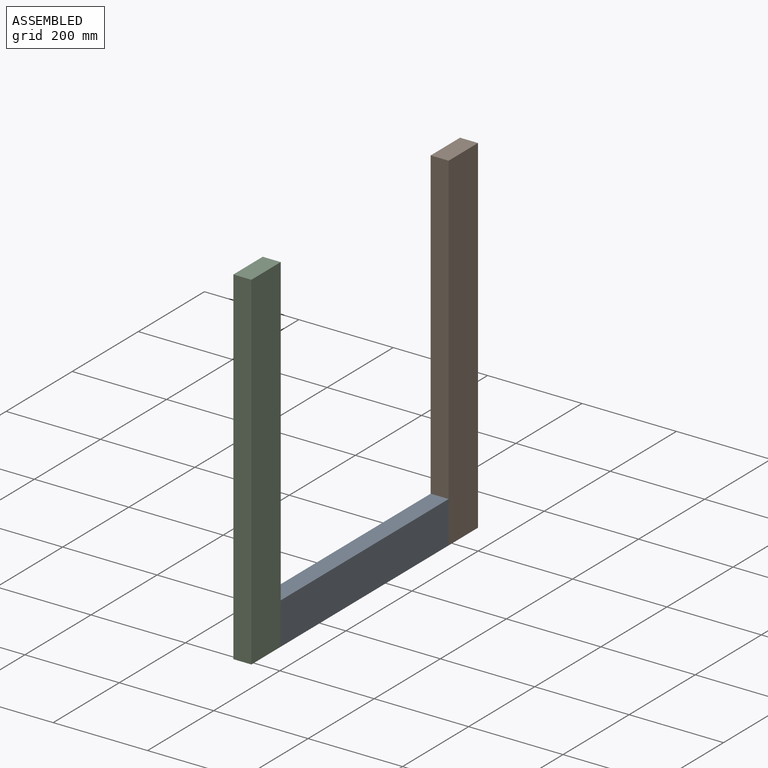
[diagram: assembled view]
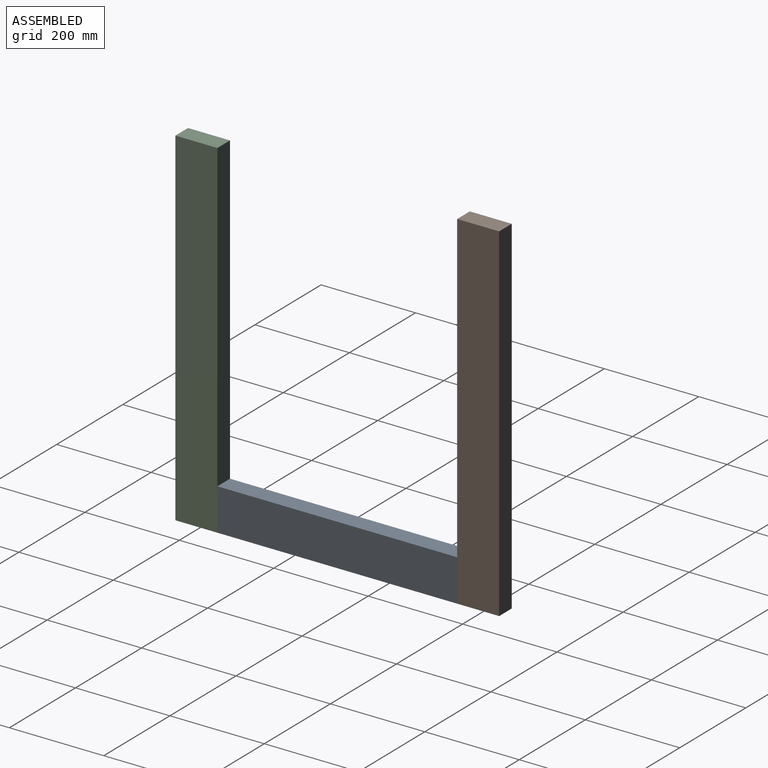
[diagram: assembled view, second angle]
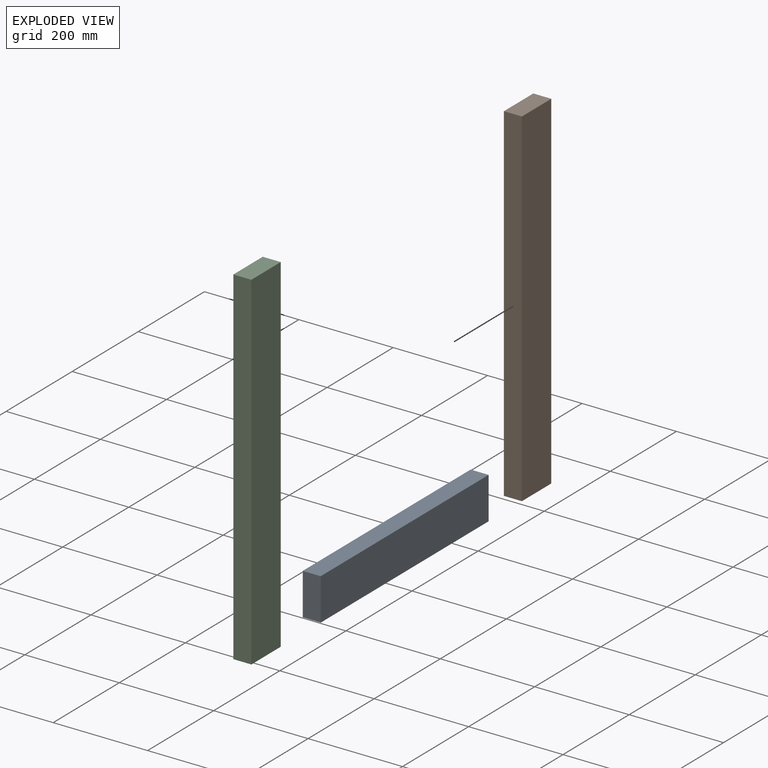
[diagram: exploded view]
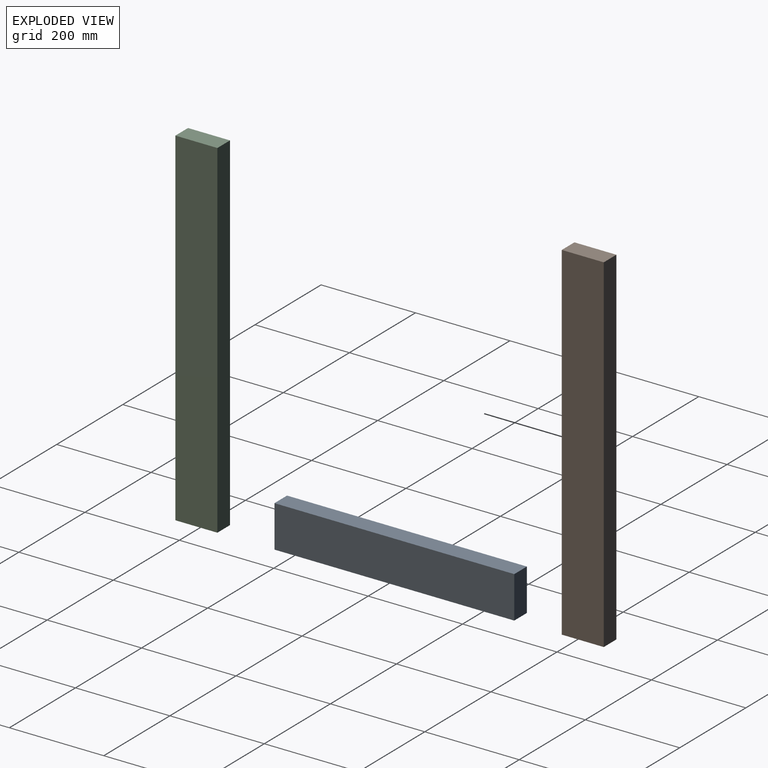
[diagram: exploded view, second angle]
ASSEMBLY  parts=3 mates=2
PART A: 6 faces, bbox 38.1x508x88.9 mm
  f0: plane 508x38.1mm, normal (0,0,-1), area 19354.8mm2, adj f1,f3,f4,f5
  f1: plane 508x88.9mm, normal (1,0,0), area 45161.2mm2, adj f0,f2,f4,f5
  f2: plane 508x38.1mm, normal (0,0,1), area 19354.8mm2, adj f1,f3,f4,f5
  f3: plane 508x88.9mm, normal (-1,0,0), area 45161.2mm2, adj f0,f2,f4,f5
  f4: plane 88.9x38.1mm, normal (0,-1,0), area 3387.1mm2, adj f0,f1,f2,f3
  f5: plane 88.9x38.1mm, normal (0,1,0), area 3387.1mm2, adj f0,f1,f2,f3
PART B: 6 faces, bbox 38.1x88.9x736.6 mm
  f0: plane 736.6x38.1mm, normal (0,-1,0), area 28064.5mm2, adj f1,f3,f4,f5
  f1: plane 736.6x88.9mm, normal (1,0,0), area 65483.7mm2, adj f0,f2,f4,f5
  f2: plane 736.6x38.1mm, normal (0,1,0), area 28064.5mm2, adj f1,f3,f4,f5
  f3: plane 736.6x88.9mm, normal (-1,0,0), area 65483.7mm2, adj f0,f2,f4,f5
  f4: plane 88.9x38.1mm, normal (0,0,1), area 3387.1mm2, adj f0,f1,f2,f3
  f5: plane 88.9x38.1mm, normal (0,0,-1), area 3387.1mm2, adj f0,f1,f2,f3
PART C: same geometry as B
PLACE A t=(-55.55,163.07,35.54)mm
PLACE B t=(-55.55,207.52,-8.91)mm
PLACE C t=(-55.55,-389.38,-8.91)mm
MATE fastened A.f5 <-> B.f0  axis (0,1,0) through (-36.5,163.07,-8.91)mm
MATE fastened A.f4 <-> C.f2  axis (0,-1,0) through (-74.6,-344.93,-8.91)mm
